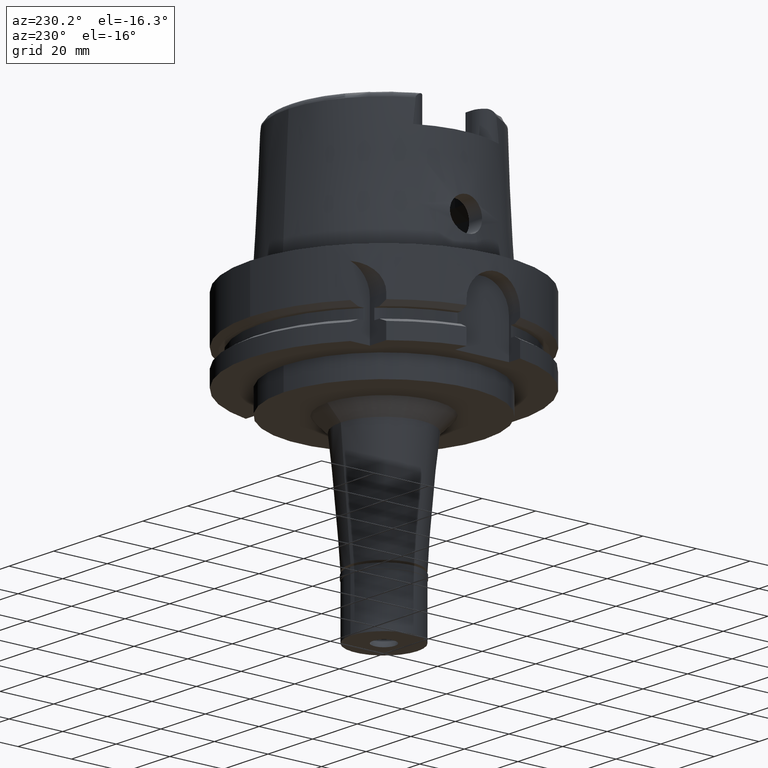
[diagram: clean part render]
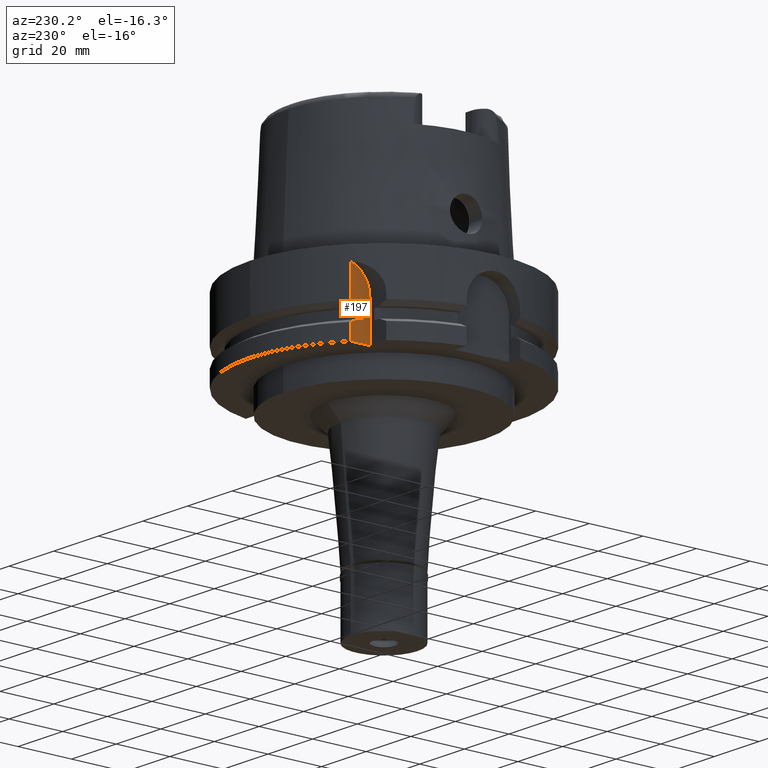
[diagram: same view with one face highlighted and labeled with its STEP entity id]
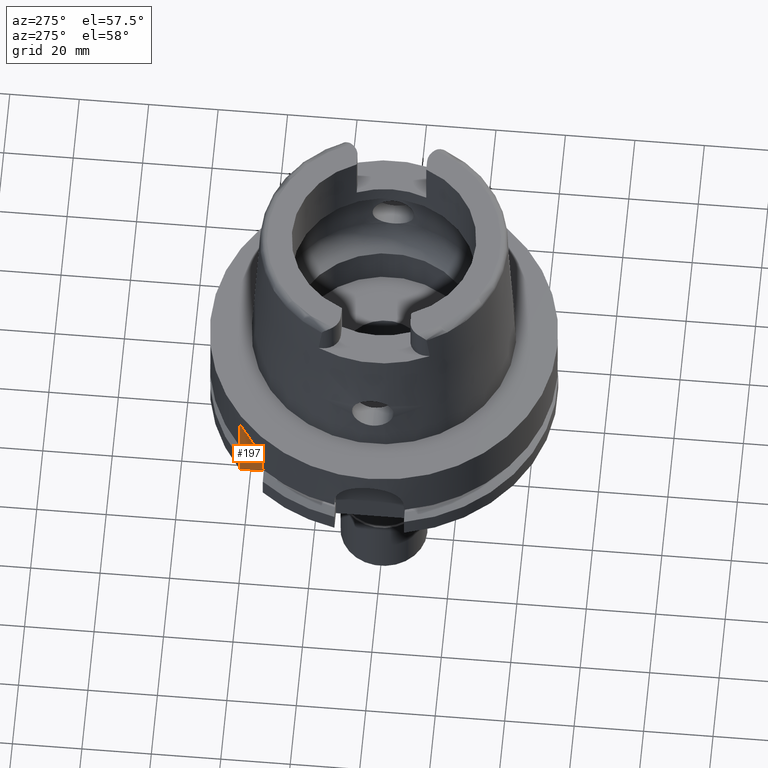
[diagram: same view with one face highlighted and labeled with its STEP entity id]
A machine part, auxiliary view. The second image highlights one B-rep face of the part: STEP entity #197.
A second angle (auxiliary view) of the same face is appended — the face is thin or edge-on in the first view.
In plain terms, the highlighted planar face has unit normal (1, 0, 0).
Its self-contained STEP definition (entity closure, byte-faithful):
#25 = DIRECTION ( 'NONE',  ( 6.188494047474892859E-07, 5.020316378013912240E-07, -0.9999999999996824762 ) ) ;
#86 = ORIENTED_EDGE ( 'NONE', *, *, #2439, .T. ) ;
#185 = CARTESIAN_POINT ( 'NONE',  ( -31.50000000000000000, 38.82975663071000128, -5.000000000003000267 ) ) ;
#197 = ADVANCED_FACE ( 'NONE', ( #2014 ), #4514, .F. ) ;
#205 = VECTOR ( 'NONE', #25, 1000.000000000000000 ) ;
#348 = CARTESIAN_POINT ( 'NONE',  ( -31.50000355958999876, 38.82975374304999860, -16.75239179145000179 ) ) ;
#384 = LINE ( 'NONE', #2099, #561 ) ;
#391 = CARTESIAN_POINT ( 'NONE',  ( -31.50000000000000000, 31.50000000000000000, -29.00000000000000000 ) ) ;
#458 = EDGE_CURVE ( 'NONE', #1371, #1070, #5323, .T. ) ;
#459 = CARTESIAN_POINT ( 'NONE',  ( -31.50000000000000000, 37.76623563873953771, -22.77076145791643569 ) ) ;
#509 = AXIS2_PLACEMENT_3D ( 'NONE', #4090, #691, #2377 ) ;
#561 = VECTOR ( 'NONE', #2906, 1000.000000000000000 ) ;
#607 = CARTESIAN_POINT ( 'NONE',  ( -31.50000000000000000, 33.52238058372000040, -21.87500000000000000 ) ) ;
#691 = DIRECTION ( 'NONE',  ( 1.000000000000000000, 0.0000000000000000000, 0.0000000000000000000 ) ) ;
#842 = VECTOR ( 'NONE', #2343, 1000.000000000000114 ) ;
#859 = VERTEX_POINT ( 'NONE', #2357 ) ;
#888 = VERTEX_POINT ( 'NONE', #3282 ) ;
#898 = LINE ( 'NONE', #3497, #3724 ) ;
#1028 = DIRECTION ( 'NONE',  ( 0.0000000000000000000, 0.0000000000000000000, -1.000000000000000000 ) ) ;
#1061 = VERTEX_POINT ( 'NONE', #185 ) ;
#1070 = VERTEX_POINT ( 'NONE', #5415 ) ;
#1150 = CARTESIAN_POINT ( 'NONE',  ( -31.50000000000000000, 33.52238058372000040, -18.12500000000000000 ) ) ;
#1207 = VECTOR ( 'NONE', #1028, 1000.000000000000000 ) ;
#1282 = CARTESIAN_POINT ( 'NONE',  ( -31.50000355985999789, 38.82975374283000036, -23.24760820811999906 ) ) ;
#1291 = CARTESIAN_POINT ( 'NONE',  ( -31.50000355985999789, 38.82975374283000036, -23.24760820811999906 ) ) ;
#1370 = DIRECTION ( 'NONE',  ( -4.434271693799003071E-07, 0.9999999999999016342, -9.229865077722006851E-14 ) ) ;
#1371 = VERTEX_POINT ( 'NONE', #391 ) ;
#1399 = VECTOR ( 'NONE', #2531, 1000.000000000000227 ) ;
#1427 = ORIENTED_EDGE ( 'NONE', *, *, #3441, .F. ) ;
#1444 = LINE ( 'NONE', #2731, #842 ) ;
#1649 = DIRECTION ( 'NONE',  ( 1.000000000000000000, 0.0000000000000000000, 0.0000000000000000000 ) ) ;
#1768 = VERTEX_POINT ( 'NONE', #2743 ) ;
#1786 = B_SPLINE_CURVE_WITH_KNOTS ( 'NONE', 3,
 ( #4314, #4288, #4677, #348 ),
 .UNSPECIFIED., .F., .F.,
 ( 4, 4 ),
 ( 0.0000000000000000000, 1.000000000000000000 ),
 .UNSPECIFIED. ) ;
#1908 = LINE ( 'NONE', #1990, #1207 ) ;
#1951 = EDGE_CURVE ( 'NONE', #1371, #3433, #384, .T. ) ;
#1958 = EDGE_CURVE ( 'NONE', #1061, #3433, #2195, .T. ) ;
#1990 = CARTESIAN_POINT ( 'NONE',  ( -31.50000000000000000, 33.52238058372000040, -18.12500000000000000 ) ) ;
#2014 = FACE_OUTER_BOUND ( 'NONE', #2508, .T. ) ;
#2051 = ORIENTED_EDGE ( 'NONE', *, *, #458, .F. ) ;
#2069 = CARTESIAN_POINT ( 'NONE',  ( -31.50000097288999967, 35.71639618401999883, -21.87500000000000000 ) ) ;
#2099 = CARTESIAN_POINT ( 'NONE',  ( -31.50000000000000000, 31.50000000000000000, -29.00000000000000000 ) ) ;
#2169 = LINE ( 'NONE', #1282, #205 ) ;
#2183 = B_SPLINE_CURVE_WITH_KNOTS ( 'NONE', 3,
 ( #2069, #2593, #459, #1291 ),
 .UNSPECIFIED., .F., .F.,
 ( 4, 4 ),
 ( 0.0000000000000000000, 1.000000000000000000 ),
 .UNSPECIFIED. ) ;
#2195 = CIRCLE ( 'NONE', #3708, 9.999999999999996447 ) ;
#2261 = EDGE_CURVE ( 'NONE', #1061, #2693, #1444, .T. ) ;
#2343 = DIRECTION ( 'NONE',  ( -3.028823767049074487E-07, -2.457085509676059455E-07, -0.9999999999999239497 ) ) ;
#2357 = CARTESIAN_POINT ( 'NONE',  ( -31.50000355985999789, 38.82975374283000036, -23.24760820811999906 ) ) ;
#2377 = DIRECTION ( 'NONE',  ( 0.0000000000000000000, 1.000000000000000000, 0.0000000000000000000 ) ) ;
#2439 = EDGE_CURVE ( 'NONE', #1768, #859, #2183, .T. ) ;
#2508 = EDGE_LOOP ( 'NONE', ( #2640, #3553, #2558, #1427, #3572, #3665, #5234, #86, #4300, #2051 ) ) ;
#2531 = DIRECTION ( 'NONE',  ( -4.433903906541007990E-07, 0.9999999999999016342, 9.391792532212016159E-14 ) ) ;
#2558 = ORIENTED_EDGE ( 'NONE', *, *, #2261, .T. ) ;
#2593 = CARTESIAN_POINT ( 'NONE',  ( -31.50000000000000000, 36.72844978580286579, -22.31322538854309911 ) ) ;
#2640 = ORIENTED_EDGE ( 'NONE', *, *, #1951, .T. ) ;
#2688 = CARTESIAN_POINT ( 'NONE',  ( -31.50000000000000000, 31.50000000000000000, -29.00000000000000000 ) ) ;
#2693 = VERTEX_POINT ( 'NONE', #2827 ) ;
#2731 = CARTESIAN_POINT ( 'NONE',  ( -31.50000000000000000, 38.82975663071000128, -5.000000000003000267 ) ) ;
#2743 = CARTESIAN_POINT ( 'NONE',  ( -31.50000097288999967, 35.71639618401999883, -21.87500000000000000 ) ) ;
#2797 = EDGE_CURVE ( 'NONE', #859, #1070, #2169, .T. ) ;
#2827 = CARTESIAN_POINT ( 'NONE',  ( -31.50000355958999876, 38.82975374304999860, -16.75239179145000179 ) ) ;
#2906 = DIRECTION ( 'NONE',  ( 0.0000000000000000000, 0.0000000000000000000, 1.000000000000000000 ) ) ;
#2964 = CARTESIAN_POINT ( 'NONE',  ( -31.50000000000000000, 41.50000000000000000, -14.63689785921000031 ) ) ;
#3113 = DIRECTION ( 'NONE',  ( 4.798503851105999980E-14, 1.000000000000000000, 0.0000000000000000000 ) ) ;
#3282 = CARTESIAN_POINT ( 'NONE',  ( -31.50000097280999967, 35.71639618471999711, -18.12500000000000000 ) ) ;
#3359 = DIRECTION ( 'NONE',  ( 0.0000000000000000000, -0.2670243369289914681, 0.9636897859205691974 ) ) ;
#3433 = VERTEX_POINT ( 'NONE', #4746 ) ;
#3441 = EDGE_CURVE ( 'NONE', #888, #2693, #1786, .T. ) ;
#3483 = VECTOR ( 'NONE', #3113, 1000.000000000000000 ) ;
#3497 = CARTESIAN_POINT ( 'NONE',  ( -31.50000000000000000, 33.52238058372000040, -21.87500000000000000 ) ) ;
#3553 = ORIENTED_EDGE ( 'NONE', *, *, #1958, .F. ) ;
#3572 = ORIENTED_EDGE ( 'NONE', *, *, #4885, .F. ) ;
#3583 = VERTEX_POINT ( 'NONE', #4474 ) ;
#3665 = ORIENTED_EDGE ( 'NONE', *, *, #4141, .T. ) ;
#3708 = AXIS2_PLACEMENT_3D ( 'NONE', #2964, #1649, #3359 ) ;
#3724 = VECTOR ( 'NONE', #1370, 1000.000000000000000 ) ;
#3814 = EDGE_CURVE ( 'NONE', #4163, #1768, #898, .T. ) ;
#4090 = CARTESIAN_POINT ( 'NONE',  ( -31.50000000000000000, 0.0000000000000000000, 0.0000000000000000000 ) ) ;
#4141 = EDGE_CURVE ( 'NONE', #3583, #4163, #1908, .T. ) ;
#4163 = VERTEX_POINT ( 'NONE', #607 ) ;
#4288 = CARTESIAN_POINT ( 'NONE',  ( -31.50000195460757979, 36.73337253298934257, -17.68464608511978042 ) ) ;
#4300 = ORIENTED_EDGE ( 'NONE', *, *, #2797, .T. ) ;
#4314 = CARTESIAN_POINT ( 'NONE',  ( -31.50000097280999967, 35.71639618471999711, -18.12500000000000000 ) ) ;
#4474 = CARTESIAN_POINT ( 'NONE',  ( -31.50000000000000000, 33.52238058372000040, -18.12500000000000000 ) ) ;
#4514 = PLANE ( 'NONE',  #509 ) ;
#4677 = CARTESIAN_POINT ( 'NONE',  ( -31.50000711004718212, 37.77100375014965294, -17.22711240004090172 ) ) ;
#4746 = CARTESIAN_POINT ( 'NONE',  ( -31.50000000000000000, 31.50000000000000000, -14.63689785921000031 ) ) ;
#4885 = EDGE_CURVE ( 'NONE', #3583, #888, #5579, .T. ) ;
#5234 = ORIENTED_EDGE ( 'NONE', *, *, #3814, .T. ) ;
#5323 = LINE ( 'NONE', #2688, #3483 ) ;
#5415 = CARTESIAN_POINT ( 'NONE',  ( -31.50000000000000000, 38.82975663071000128, -29.00000000000000000 ) ) ;
#5579 = LINE ( 'NONE', #1150, #1399 ) ;